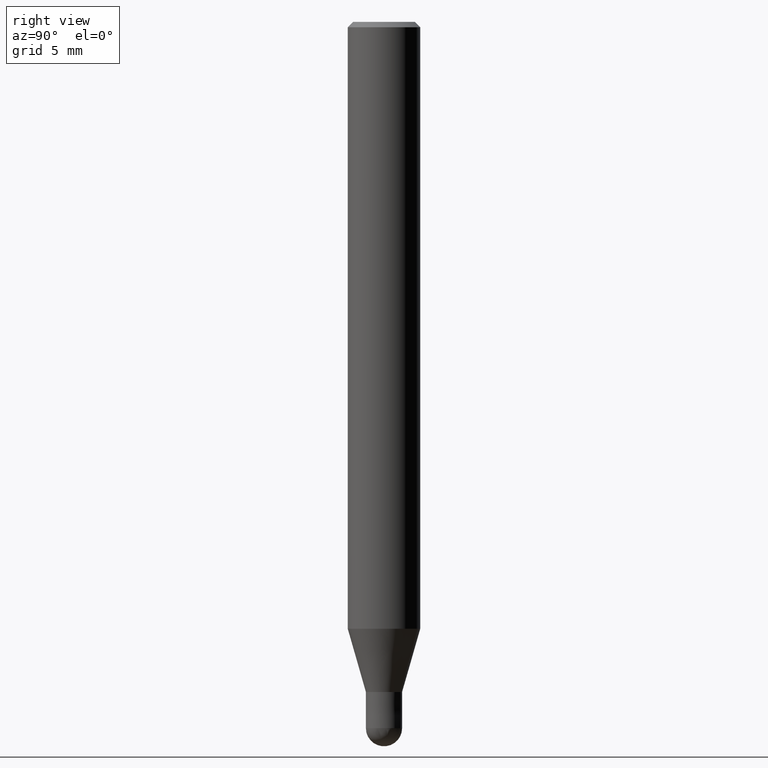
[diagram: clean part render]
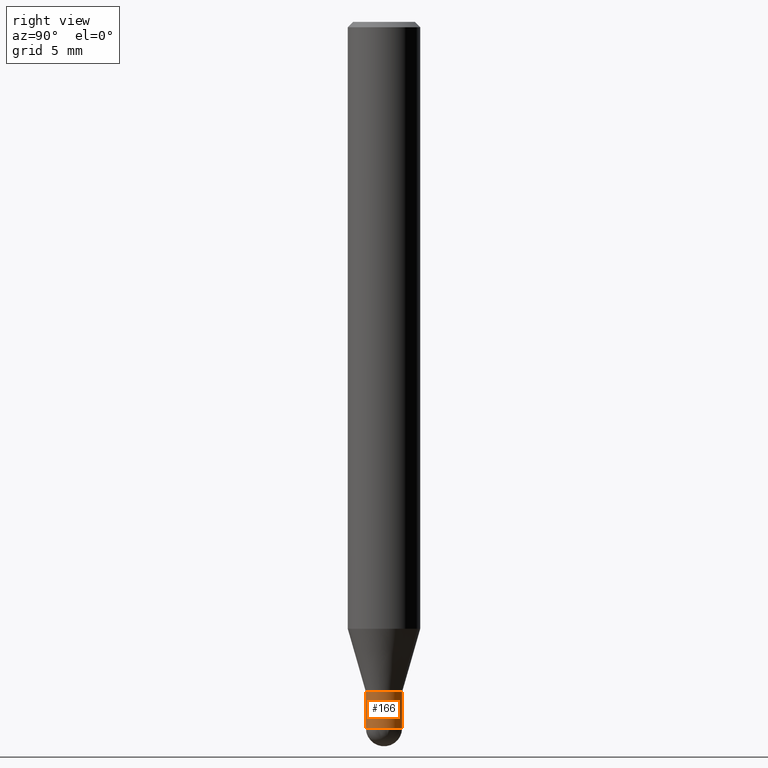
[diagram: same view with one face highlighted and labeled with its STEP entity id]
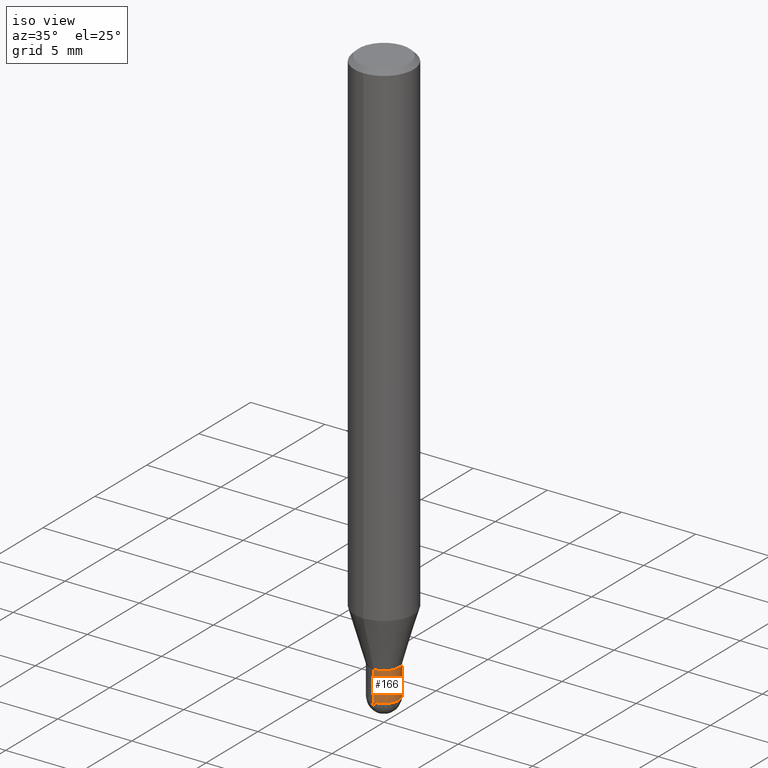
[diagram: same view with one face highlighted and labeled with its STEP entity id]
A machine part, right view. The second image highlights one B-rep face of the part: STEP entity #166.
A second angle (iso view) of the same face is appended — the face is thin or edge-on in the first view.
In plain terms, the highlighted conical surface has half-angle 0.003 deg.
Its self-contained STEP definition (entity closure, byte-faithful):
#100=EDGE_CURVE('',#178,#170,#225,.T.);
#104=VERTEX_POINT('',#230);
#118=EDGE_CURVE('',#170,#144,#248,.T.);
#126=EDGE_CURVE('',#144,#104,#258,.T.);
#144=VERTEX_POINT('',#277);
#146=EDGE_CURVE('',#178,#104,#279,.T.);
#166=ADVANCED_FACE('',(#300),#301,.T.);
#170=VERTEX_POINT('',#306);
#178=VERTEX_POINT('',#316);
#225=LINE('',#367,#368);
#230=CARTESIAN_POINT('',(1.224483893187E-016,-0.9999,-37.0));
#248=CIRCLE('',#392,1.0);
#258=LINE('',#404,#405);
#277=CARTESIAN_POINT('',(1.22460635382238E-016,-1.0,-39.0));
#279=CIRCLE('',#432,0.9999);
#300=FACE_OUTER_BOUND('',#457,.T.);
#301=CONICAL_SURFACE('',#458,0.99995,4.99999999583278E-005);
#306=CARTESIAN_POINT('',(0.0,1.0,-39.0));
#316=CARTESIAN_POINT('',(0.0,0.9999,-37.0));
#367=CARTESIAN_POINT('',(-1.22454512350469E-016,0.99995,-38.0));
#368=VECTOR('',#510,1.0);
#392=AXIS2_PLACEMENT_3D('',#551,#552,#553);
#404=CARTESIAN_POINT('',(1.22454512350469E-016,-0.99995,-38.0));
#405=VECTOR('',#571,1.0);
#432=AXIS2_PLACEMENT_3D('',#588,#589,#590);
#457=EDGE_LOOP('',(#607,#608,#609,#610));
#458=AXIS2_PLACEMENT_3D('',#611,#612,#613);
#510=DIRECTION('',(-6.12303176145742E-021,4.99999999374945E-005,-0.99999999875));
#551=CARTESIAN_POINT('',(0.0,0.0,-39.0));
#552=DIRECTION('',(0.0,0.0,-1.0));
#553=DIRECTION('',(0.0,1.0,0.0));
#571=DIRECTION('',(-6.12303176145742E-021,4.99999999374945E-005,0.99999999875));
#588=CARTESIAN_POINT('',(0.0,0.0,-37.0));
#589=DIRECTION('',(0.0,0.0,-1.0));
#590=DIRECTION('',(0.0,1.0,0.0));
#607=ORIENTED_EDGE('',*,*,#100,.F.);
#608=ORIENTED_EDGE('',*,*,#146,.T.);
#609=ORIENTED_EDGE('',*,*,#126,.F.);
#610=ORIENTED_EDGE('',*,*,#118,.F.);
#611=CARTESIAN_POINT('',(0.0,0.0,-38.0));
#612=DIRECTION('',(0.0,-0.0,-1.0));
#613=DIRECTION('',(0.0,1.0,0.0));